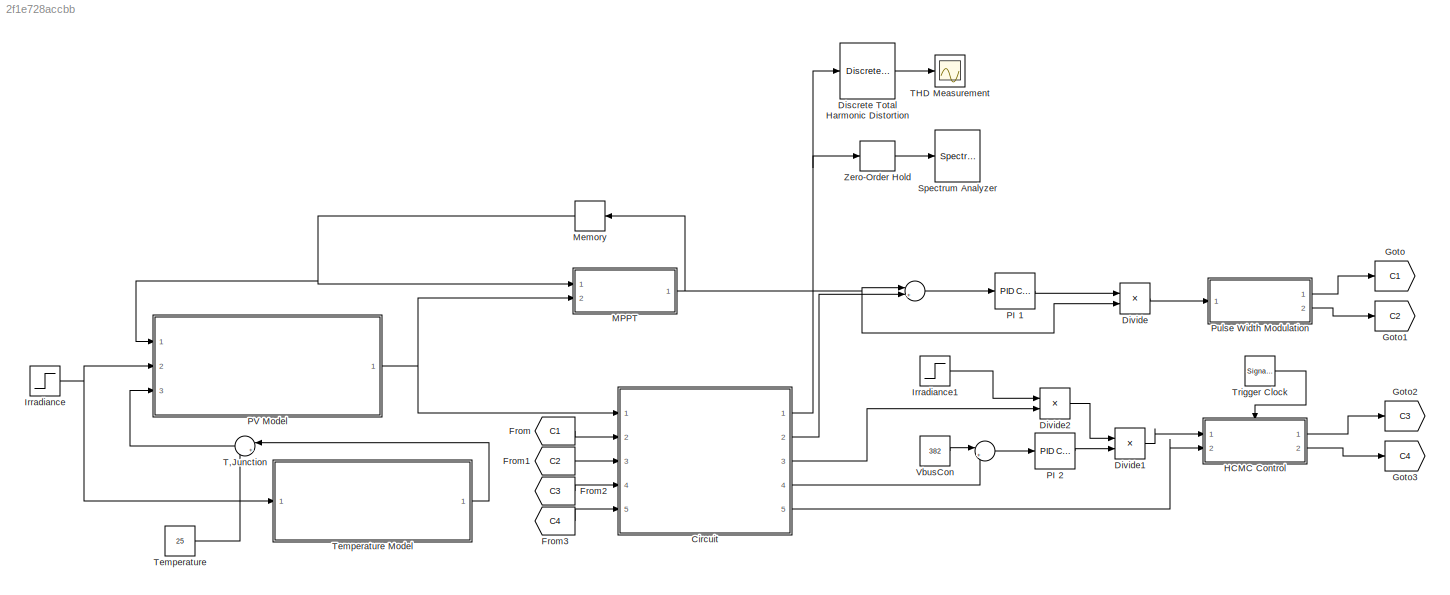
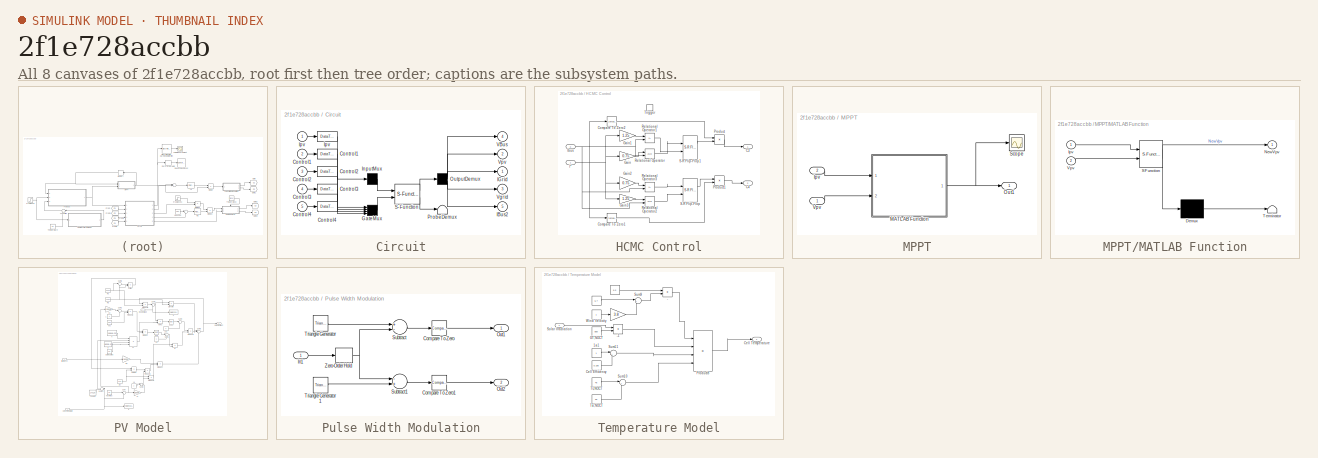
[diagram: thumbnail index - all 8 canvases of the model, root first then tree order]
MODEL slx_2f1e728accbb
KIND model
CONFIG AbsTol = auto
CONFIG EnableMultiTasking = off
CONFIG FixedStep = 0.0001
CONFIG MaxStep = auto
CONFIG MinStep = auto
CONFIG RelTol = 1e-3
CONFIG SampleTimeConstraint = Unconstrained
CONFIG Solver = VariableStepAuto
CONFIG SolverName = VariableStepAuto
CONFIG StartTime = 0.0
CONFIG StopTime = 5
BLOCK [Sum]  
  IconShape = round
  InputSameDT = off
  Inputs = |+-
  OutDataTypeStr = Inherit: Inherit via internal rule
  Ports = [2, 1]
  SaturateOnIntegerOverflow = off
BLOCK [Sum]    
  IconShape = round
  InputSameDT = off
  Inputs = |+-
  OutDataTypeStr = Inherit: Inherit via internal rule
  Ports = [2, 1]
  SaturateOnIntegerOverflow = off
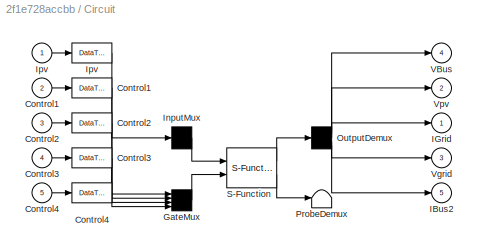
BLOCK [SubSystem] Circuit
  CopyFcn = plecs('sl', 203);
  DeleteFcn = plecs('sl', 205);
  DestroyFcn = plecs('sl', 207);
  ErrorFcn = plerrorfcn
  InitFcn = plecs('sl', 214);
  LoadFcn = plecs('sl', 200);
  NameChangeFcn = plecs('sl', 210);
  OpenFcn = plecs('sl', 202);
  Ports = [5, 5]
  PostSaveFcn = plecs('sl', 201);
  PreCopyFcn = plecs('sl', 216);
  PreSaveFcn = plecs('sl', 211);
  RequestExecContextInheritance = off
  StartFcn = plecs('sl', 208);
  StopFcn = plecs('sl', 209);
  UndoDeleteFcn = plecs('sl', 206);
BLOCK [DataTypeConversion] Circuit/ Control1 
BLOCK [DataTypeConversion] Circuit/ Control2 
BLOCK [DataTypeConversion] Circuit/ Control3 
BLOCK [DataTypeConversion] Circuit/ Control4 
BLOCK [Mux] Circuit/ GateMux 
  Inputs = [ 1 1 1 1 ]
  Ports = [4, 1]
BLOCK [Mux] Circuit/ InputMux 
  Inputs = [ 1 ]
  Ports = [1, 1]
BLOCK [DataTypeConversion] Circuit/ Ipv 
BLOCK [Demux] Circuit/ OutputDemux 
  Outputs = [ 1 1 1 1 1 ]
  Ports = [1, 5]
BLOCK [Terminator] Circuit/ ProbeDemux 
BLOCK [S-Function] Circuit/ S-Function 
  EnableBusSupport = off
  FunctionName = plecs
  Ports = [2, 2]
  SFcnIsStateOwnerBlock = off
  SFunctionDeploymentMode = off
BLOCK [Inport] Circuit/Control1
  IconDisplay = Port number
  Port = 2
  PortDimensions = 1
BLOCK [Inport] Circuit/Control2
  IconDisplay = Port number
  Port = 3
  PortDimensions = 1
BLOCK [Inport] Circuit/Control3
  IconDisplay = Port number
  Port = 4
  PortDimensions = 1
BLOCK [Inport] Circuit/Control4
  IconDisplay = Port number
  Port = 5
  PortDimensions = 1
BLOCK [Outport] Circuit/IBus2
  IconDisplay = Port number
  Port = 5
  PortDimensions = 1
BLOCK [Outport] Circuit/IGrid
  IconDisplay = Port number
  PortDimensions = 1
BLOCK [Inport] Circuit/Ipv
  IconDisplay = Port number
  PortDimensions = 1
BLOCK [Outport] Circuit/VBus
  IconDisplay = Port number
  Port = 4
  PortDimensions = 1
BLOCK [Outport] Circuit/Vgrid
  IconDisplay = Port number
  Port = 3
  PortDimensions = 1
BLOCK [Outport] Circuit/Vpv
  IconDisplay = Port number
  Port = 2
  PortDimensions = 1
BLOCK [Reference] Discrete Total Harmonic Distortion  REF=plecslib_extras2/Discrete Analysis/Discrete
Total Harmonic
Distortion
  Ports = [1, 1]
  SourceBlock = plecslib_extras2/Discrete Analysis/Discrete\nTotal Harmonic\nDistortion
  SourceProductName = PLECS Extras
  SourceType = Discrete Total Harmonic Distortion
BLOCK [Product] Divide
  InputSameDT = off
  Inputs = */
  OutDataTypeStr = Inherit: Inherit via internal rule
  Ports = [2, 1]
  RndMeth = Floor
  SaturateOnIntegerOverflow = off
BLOCK [Product] Divide1
  InputSameDT = off
  Inputs = **
  OutDataTypeStr = Inherit: Inherit via internal rule
  Ports = [2, 1]
  RndMeth = Floor
  SaturateOnIntegerOverflow = off
BLOCK [Product] Divide2
  InputSameDT = off
  Inputs = **
  OutDataTypeStr = Inherit: Inherit via internal rule
  Ports = [2, 1]
  RndMeth = Floor
  SaturateOnIntegerOverflow = off
BLOCK [From] From
  GotoTag = C1
BLOCK [From] From1
  GotoTag = C2
BLOCK [From] From2
  GotoTag = C3
BLOCK [From] From3
  GotoTag = C4
BLOCK [Goto] Goto
  GotoTag = C1
BLOCK [Goto] Goto1
  GotoTag = C2
BLOCK [Goto] Goto2
  GotoTag = C3
BLOCK [Goto] Goto3
  GotoTag = C4
BLOCK [SubSystem] HCMC Control
  Ports = [2, 2, 0, 1]
  RequestExecContextInheritance = off
BLOCK [Outport] HCMC Control/C3
  IconDisplay = Port number
BLOCK [Outport] HCMC Control/C4
  IconDisplay = Port number
  Port = 2
BLOCK [Reference] HCMC Control/Compare To Zero1  REF=simulink/Logic and Bit
Operations/Compare
To Zero
  Ports = [1, 1]
  SourceBlock = simulink/Logic and Bit\nOperations/Compare\nTo Zero
  SourceProductBaseCode = SL
  SourceProductName = Simulink
  SourceType = Compare To Zero
BLOCK [Reference] HCMC Control/Compare To Zero2  REF=simulink/Logic and Bit
Operations/Compare
To Zero
  Ports = [1, 1]
  SourceBlock = simulink/Logic and Bit\nOperations/Compare\nTo Zero
  SourceProductBaseCode = SL
  SourceProductName = Simulink
  SourceType = Compare To Zero
BLOCK [Gain] HCMC Control/Gain
  Gain = 0.75
  OutDataTypeStr = Inherit: Inherit via internal rule
  ParamDataTypeStr = Inherit: Inherit via internal rule
  SaturateOnIntegerOverflow = off
BLOCK [Gain] HCMC Control/Gain1
  Gain = 1.25
  OutDataTypeStr = Inherit: Inherit via internal rule
  ParamDataTypeStr = Inherit: Inherit via internal rule
  SaturateOnIntegerOverflow = off
BLOCK [Gain] HCMC Control/Gain2
  Gain = 0.75
  OutDataTypeStr = Inherit: Inherit via internal rule
  ParamDataTypeStr = Inherit: Inherit via internal rule
  SaturateOnIntegerOverflow = off
BLOCK [Gain] HCMC Control/Gain3
  Gain = 1.25
  OutDataTypeStr = Inherit: Inherit via internal rule
  ParamDataTypeStr = Inherit: Inherit via internal rule
  SaturateOnIntegerOverflow = off
BLOCK [Inport] HCMC Control/I*
  IconDisplay = Port number
BLOCK [Inport] HCMC Control/Ibus
  IconDisplay = Port number
  Port = 2
BLOCK [Product] HCMC Control/Product
  InputSameDT = off
  OutDataTypeStr = Inherit: Inherit via internal rule
  Ports = [2, 1]
  RndMeth = Floor
  SaturateOnIntegerOverflow = off
BLOCK [Product] HCMC Control/Product1
  InputSameDT = off
  OutDataTypeStr = Inherit: Inherit via internal rule
  Ports = [2, 1]
  RndMeth = Floor
  SaturateOnIntegerOverflow = off
BLOCK [RelationalOperator] HCMC Control/Relational Operator
  InputSameDT = off
  OutDataTypeStr = boolean
  Ports = [2, 1]
  RndMeth = Simplest
  ZeroCross = off
BLOCK [RelationalOperator] HCMC Control/Relational Operator1
  InputSameDT = off
  Operator = <=
  OutDataTypeStr = boolean
  Ports = [2, 1]
  RndMeth = Simplest
  ZeroCross = off
BLOCK [RelationalOperator] HCMC Control/Relational Operator2
  InputSameDT = off
  OutDataTypeStr = boolean
  Ports = [2, 1]
  RndMeth = Simplest
  ZeroCross = off
BLOCK [RelationalOperator] HCMC Control/Relational Operator3
  InputSameDT = off
  Operator = <=
  OutDataTypeStr = boolean
  Ports = [2, 1]
  RndMeth = Simplest
  ZeroCross = off
BLOCK [Reference] HCMC Control/S-R Flip-Flop  REF=simulink_extras/Flip Flops/S-R
Flip-Flop
  Ports = [2, 2]
  SourceBlock = simulink_extras/Flip Flops/S-R\nFlip-Flop
  SourceProductBaseCode = SL
  SourceProductName = Simulink
  SourceType = SRFlipFlop
BLOCK [Reference] HCMC Control/S-R Flip-Flop1  REF=simulink_extras/Flip Flops/S-R
Flip-Flop
  Ports = [2, 2]
  SourceBlock = simulink_extras/Flip Flops/S-R\nFlip-Flop
  SourceProductBaseCode = SL
  SourceProductName = Simulink
  SourceType = SRFlipFlop
BLOCK [TriggerPort] HCMC Control/Trigger
  PortDimensions = 1
  Ports = []
  StatesWhenEnabling = held
  VariantControl = Variant
BLOCK [Step] Irradiance
  After = 1000
  Before = 1000
  SampleTime = 0
BLOCK [Step] Irradiance1
  After = 1/245
  Before = 1/220
  SampleTime = 0
BLOCK [SubSystem] MPPT
  Ports = [2, 1]
  RequestExecContextInheritance = off
BLOCK [Inport] MPPT/Ipv
  IconDisplay = Port number
  Port = 2
BLOCK [SubSystem] MPPT/MATLAB Function
  ErrorFcn = Stateflow.Translate.translate
  PermitHierarchicalResolution = ExplicitOnly
  Ports = [2, 1]
  RequestExecContextInheritance = off
  SFBlockType = MATLAB Function
  TreatAsAtomicUnit = on
BLOCK [Demux] MPPT/MATLAB Function/ Demux 
  Outputs = 1
  Ports = [1, 1]
BLOCK [S-Function] MPPT/MATLAB Function/ SFunction 
  EnableBusSupport = on
  FunctionName = sf_sfun
  PortCounts = [2 2]
  Ports = [2, 2]
  SFcnIsStateOwnerBlock = off
  SFunctionDeploymentMode = off
  Tag = Stateflow S-Function 1
BLOCK [Terminator] MPPT/MATLAB Function/ Terminator 
BLOCK [Inport] MPPT/MATLAB Function/Ipv
  IconDisplay = Port number
BLOCK [Outport] MPPT/MATLAB Function/NewVpv
  IconDisplay = Port number
  VectorParamsAs1DForOutWhenUnconnected = off
BLOCK [Inport] MPPT/MATLAB Function/Vpv
  IconDisplay = Port number
  Port = 2
BLOCK [Outport] MPPT/Out1
  IconDisplay = Port number
  VectorParamsAs1DForOutWhenUnconnected = off
BLOCK [Scope] MPPT/Scope
  Floating = off
  NumInputPorts = 1
  Ports = [1]
  ScopeSpecificationString = Simulink.scopes.TimeScopeBlockCfg('CurrentConfiguration', extmgr.ConfigurationSet(extmgr.Configuration('Core','General UI',true),extmgr.Configuration('Core','Source UI',true),extmgr.Configuration('Sources','WiredSimulink',true,'DataLoggingVariableName','ScopeData2'),extmgr.Configuration('Visuals','Time Domain',true,'SerializedDisplays',{struct('MinYLimReal','27.14067','MaxYLimReal','27.65265','YLa...<+1411ch>
BLOCK [Inport] MPPT/Vpv
  IconDisplay = Port number
BLOCK [Memory] Memory
  InitialCondition = 28
BLOCK [Reference] PI 1  REF=simulink/Continuous/PID Controller
  Ports = [1, 1]
  SourceBlock = simulink/Continuous/PID Controller
  SourceProductBaseCode = SL
  SourceProductName = Simulink
  SourceType = PID 1dof
BLOCK [Reference] PI 2  REF=simulink/Continuous/PID Controller
  Ports = [1, 1]
  SourceBlock = simulink/Continuous/PID Controller
  SourceProductBaseCode = SL
  SourceProductName = Simulink
  SourceType = PID 1dof
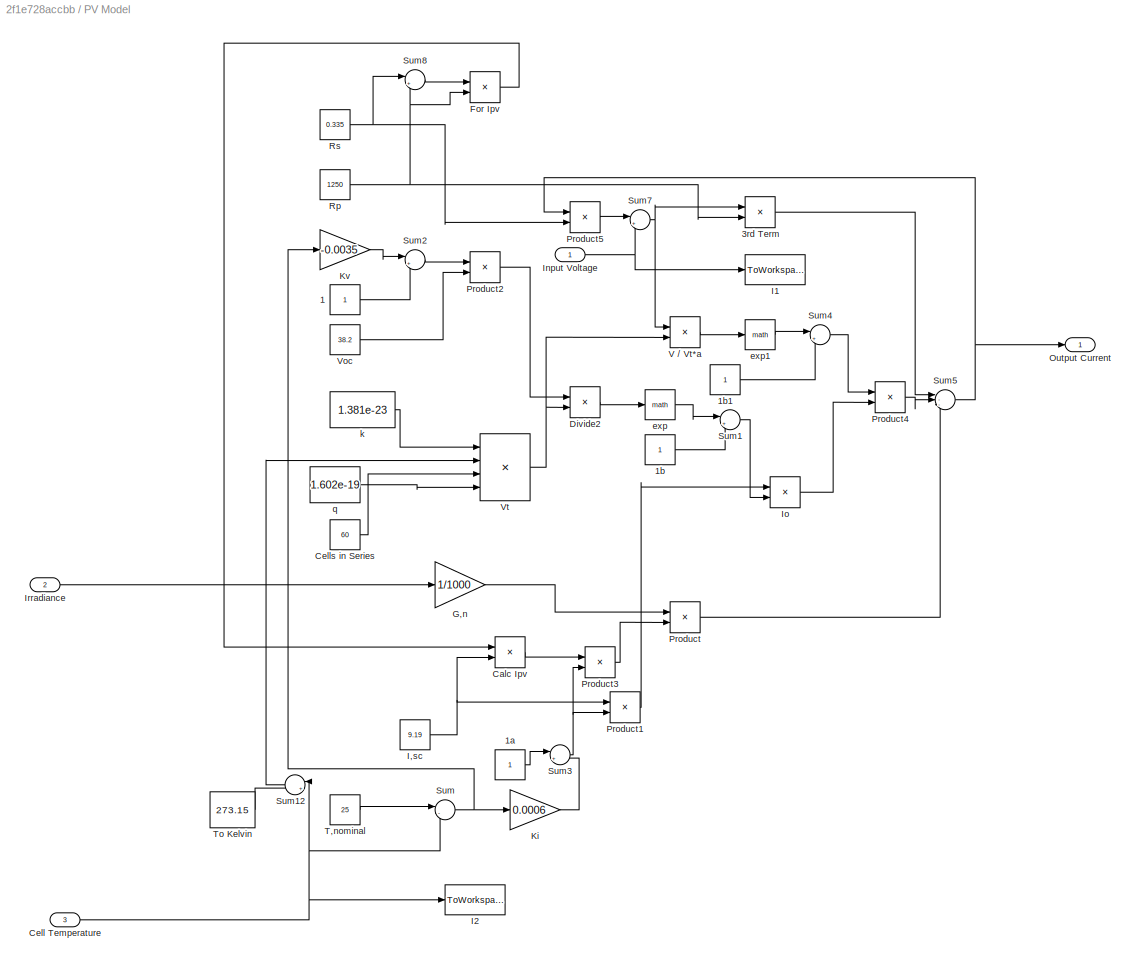
BLOCK [SubSystem] PV Model
  Ports = [3, 1]
  RequestExecContextInheritance = off
BLOCK [Constant] PV Model/1
BLOCK [Constant] PV Model/1a
BLOCK [Constant] PV Model/1b
BLOCK [Constant] PV Model/1b1
BLOCK [Product] PV Model/3rd Term
  InputSameDT = off
  Inputs = */
  OutDataTypeStr = Inherit: Inherit via internal rule
  Ports = [2, 1]
  RndMeth = Floor
  SaturateOnIntegerOverflow = off
BLOCK [Product] PV Model/Calc Ipv
  InputSameDT = off
  OutDataTypeStr = Inherit: Inherit via internal rule
  Ports = [2, 1]
  RndMeth = Floor
  SaturateOnIntegerOverflow = off
BLOCK [Inport] PV Model/Cell Temperature
  IconDisplay = Port number
  Port = 3
BLOCK [Constant] PV Model/Cells in Series
  Value = 60
BLOCK [Product] PV Model/Divide2
  InputSameDT = off
  Inputs = */
  OutDataTypeStr = Inherit: Inherit via internal rule
  Ports = [2, 1]
  RndMeth = Floor
  SaturateOnIntegerOverflow = off
BLOCK [Product] PV Model/For Ipv
  InputSameDT = off
  Inputs = */
  OutDataTypeStr = Inherit: Inherit via internal rule
  Ports = [2, 1]
  RndMeth = Floor
  SaturateOnIntegerOverflow = off
BLOCK [Gain] PV Model/G,n
  Gain = 1/1000
  OutDataTypeStr = Inherit: Inherit via internal rule
  ParamDataTypeStr = Inherit: Inherit via internal rule
  SaturateOnIntegerOverflow = off
BLOCK [Constant] PV Model/I,sc
  Value = 9.19
BLOCK [ToWorkspace] PV Model/I1
  FixptAsFi = on
  MaxDataPoints = inf
  Ports = [1]
  SampleTime = -1
  VariableName = Voltage
BLOCK [ToWorkspace] PV Model/I2
  FixptAsFi = on
  MaxDataPoints = inf
  Ports = [1]
  SampleTime = -1
  VariableName = Temperature
BLOCK [Inport] PV Model/Input Voltage
  IconDisplay = Port number
BLOCK [Product] PV Model/Io
  InputSameDT = off
  Inputs = */
  OutDataTypeStr = Inherit: Inherit via internal rule
  Ports = [2, 1]
  RndMeth = Floor
  SaturateOnIntegerOverflow = off
BLOCK [Inport] PV Model/Irradiance
  IconDisplay = Port number
  Port = 2
BLOCK [Gain] PV Model/Ki
  Gain = 0.0006
  OutDataTypeStr = Inherit: Inherit via internal rule
  ParamDataTypeStr = Inherit: Inherit via internal rule
  SaturateOnIntegerOverflow = off
BLOCK [Gain] PV Model/Kv
  Gain = -0.0035
  OutDataTypeStr = Inherit: Inherit via internal rule
  ParamDataTypeStr = Inherit: Inherit via internal rule
  SaturateOnIntegerOverflow = off
BLOCK [Outport] PV Model/Output Current
  IconDisplay = Port number
  VectorParamsAs1DForOutWhenUnconnected = off
BLOCK [Product] PV Model/Product
  InputSameDT = off
  OutDataTypeStr = Inherit: Inherit via internal rule
  Ports = [2, 1]
  RndMeth = Floor
  SaturateOnIntegerOverflow = off
BLOCK [Product] PV Model/Product1
  InputSameDT = off
  OutDataTypeStr = Inherit: Inherit via internal rule
  Ports = [2, 1]
  RndMeth = Floor
  SaturateOnIntegerOverflow = off
BLOCK [Product] PV Model/Product2
  InputSameDT = off
  OutDataTypeStr = Inherit: Inherit via internal rule
  Ports = [2, 1]
  RndMeth = Floor
  SaturateOnIntegerOverflow = off
BLOCK [Product] PV Model/Product3
  InputSameDT = off
  OutDataTypeStr = Inherit: Inherit via internal rule
  Ports = [2, 1]
  RndMeth = Floor
  SaturateOnIntegerOverflow = off
BLOCK [Product] PV Model/Product4
  InputSameDT = off
  OutDataTypeStr = Inherit: Inherit via internal rule
  Ports = [2, 1]
  RndMeth = Floor
  SaturateOnIntegerOverflow = off
BLOCK [Product] PV Model/Product5
  InputSameDT = off
  OutDataTypeStr = Inherit: Inherit via internal rule
  Ports = [2, 1]
  RndMeth = Floor
  SaturateOnIntegerOverflow = off
BLOCK [Constant] PV Model/Rp
  Value = 1250
BLOCK [Constant] PV Model/Rs
  Value = 0.335
BLOCK [Sum] PV Model/Sum
  IconShape = round
  InputSameDT = off
  Inputs = |-+
  OutDataTypeStr = Inherit: Inherit via internal rule
  Ports = [2, 1]
  SaturateOnIntegerOverflow = off
BLOCK [Sum] PV Model/Sum1
  IconShape = round
  InputSameDT = off
  Inputs = |+-
  OutDataTypeStr = Inherit: Inherit via internal rule
  Ports = [2, 1]
  SaturateOnIntegerOverflow = off
BLOCK [Sum] PV Model/Sum12
  IconShape = round
  InputSameDT = off
  Inputs = |++
  OutDataTypeStr = Inherit: Inherit via internal rule
  Ports = [2, 1]
  SaturateOnIntegerOverflow = off
BLOCK [Sum] PV Model/Sum2
  IconShape = round
  InputSameDT = off
  Inputs = |++
  OutDataTypeStr = Inherit: Inherit via internal rule
  Ports = [2, 1]
  SaturateOnIntegerOverflow = off
BLOCK [Sum] PV Model/Sum3
  IconShape = round
  InputSameDT = off
  Inputs = |++
  OutDataTypeStr = Inherit: Inherit via internal rule
  Ports = [2, 1]
  SaturateOnIntegerOverflow = off
BLOCK [Sum] PV Model/Sum4
  IconShape = round
  InputSameDT = off
  Inputs = |+-
  OutDataTypeStr = Inherit: Inherit via internal rule
  Ports = [2, 1]
  SaturateOnIntegerOverflow = off
BLOCK [Sum] PV Model/Sum5
  IconShape = round
  InputSameDT = off
  Inputs = |--+
  OutDataTypeStr = Inherit: Inherit via internal rule
  Ports = [3, 1]
  SaturateOnIntegerOverflow = off
BLOCK [Sum] PV Model/Sum7
  IconShape = round
  InputSameDT = off
  Inputs = |++
  OutDataTypeStr = Inherit: Inherit via internal rule
  Ports = [2, 1]
  SaturateOnIntegerOverflow = off
BLOCK [Sum] PV Model/Sum8
  IconShape = round
  InputSameDT = off
  Inputs = |++
  OutDataTypeStr = Inherit: Inherit via internal rule
  Ports = [2, 1]
  SaturateOnIntegerOverflow = off
BLOCK [Constant] PV Model/T,nominal
  Value = 25
BLOCK [Constant] PV Model/To Kelvin
  Value = 273.15
BLOCK [Product] PV Model/V // Vt*a
  InputSameDT = off
  Inputs = */
  OutDataTypeStr = Inherit: Inherit via internal rule
  Ports = [2, 1]
  RndMeth = Floor
  SaturateOnIntegerOverflow = off
BLOCK [Constant] PV Model/Voc
  Value = 38.2
BLOCK [Product] PV Model/Vt
  InputSameDT = off
  Inputs = ***/
  OutDataTypeStr = Inherit: Inherit via internal rule
  Ports = [4, 1]
  RndMeth = Floor
  SaturateOnIntegerOverflow = off
BLOCK [Math] PV Model/exp
  Ports = [1, 1]
BLOCK [Math] PV Model/exp1
  Ports = [1, 1]
BLOCK [Constant] PV Model/k
  Value = 1.381e-23
BLOCK [Constant] PV Model/q
  Value = 1.602e-19
BLOCK [SubSystem] Pulse Width Modulation
  Ports = [1, 2]
  RequestExecContextInheritance = off
BLOCK [Reference] Pulse Width Modulation/Compare To Zero  REF=simulink/Logic and Bit
Operations/Compare
To Zero
  Ports = [1, 1]
  SourceBlock = simulink/Logic and Bit\nOperations/Compare\nTo Zero
  SourceProductBaseCode = SL
  SourceProductName = Simulink
  SourceType = Compare To Zero
BLOCK [Reference] Pulse Width Modulation/Compare To Zero1  REF=simulink/Logic and Bit
Operations/Compare
To Zero
  Ports = [1, 1]
  SourceBlock = simulink/Logic and Bit\nOperations/Compare\nTo Zero
  SourceProductBaseCode = SL
  SourceProductName = Simulink
  SourceType = Compare To Zero
BLOCK [Inport] Pulse Width Modulation/In1
  IconDisplay = Port number
BLOCK [Outport] Pulse Width Modulation/Out1
  IconDisplay = Port number
BLOCK [Outport] Pulse Width Modulation/Out2
  IconDisplay = Port number
  Port = 2
BLOCK [Sum] Pulse Width Modulation/Subtract
  InputSameDT = off
  Inputs = +-
  OutDataTypeStr = Inherit: Inherit via internal rule
  Ports = [2, 1]
  SaturateOnIntegerOverflow = off
BLOCK [Sum] Pulse Width Modulation/Subtract1
  InputSameDT = off
  Inputs = -+
  OutDataTypeStr = Inherit: Inherit via internal rule
  Ports = [2, 1]
  SaturateOnIntegerOverflow = off
BLOCK [Reference] Pulse Width Modulation/Triangle Generator  REF=plecslib_extras2/Modulators/Triangle
Generator
  Ports = [0, 1]
  SourceBlock = plecslib_extras2/Modulators/Triangle\nGenerator
  SourceProductName = PLECS Extras
  SourceType = Symmetric Triangle Generator
BLOCK [Reference] Pulse Width Modulation/Triangle Generator1  REF=plecslib_extras2/Modulators/Triangle
Generator
  Ports = [0, 1]
  SourceBlock = plecslib_extras2/Modulators/Triangle\nGenerator
  SourceProductName = PLECS Extras
  SourceType = Symmetric Triangle Generator
BLOCK [ZeroOrderHold] Pulse Width Modulation/Zero-Order Hold
  SampleTime = -1
BLOCK [SpectrumAnalyzer] Spectrum Analyzer 
  Ports = [1]
  ScopeSpecificationString = spbscopes.SpectrumAnalyzerBlockCfg('CurrentConfiguration', extmgr.ConfigurationSet(extmgr.Configuration('Core','General UI',true),extmgr.Configuration('Core','Source UI',true),extmgr.Configuration('Sources','WiredSimulink',true),extmgr.Configuration('Visuals','Spectrum',true,'AxesProperties',struct('Color',{[0 0 0],[0 0 0]},'XColor',{[0.686274509803922 0.686274509803922 0.686274509803922],[0.68627...<+2105ch>
BLOCK [Sum] T,Junction
  IconShape = round
  InputSameDT = off
  Inputs = |++
  OutDataTypeStr = Inherit: Inherit via internal rule
  Ports = [2, 1]
  SaturateOnIntegerOverflow = off
BLOCK [Scope] THD Measurement
  Floating = off
  NumInputPorts = 1
  Ports = [1]
  ScopeSpecificationString = Simulink.scopes.TimeScopeBlockCfg('CurrentConfiguration', extmgr.ConfigurationSet(extmgr.Configuration('Core','General UI',true),extmgr.Configuration('Core','Source UI',true),extmgr.Configuration('Sources','WiredSimulink',true,'DataLoggingVariableName','ScopeData1'),extmgr.Configuration('Visuals','Time Domain',true,'SerializedDisplays',{struct('MinYLimReal','-0.00061','MaxYLimReal','0.03304','YLab...<+1582ch>
BLOCK [Constant] Temperature
  Value = 25
BLOCK [SubSystem] Temperature Model
  Ports = [1, 1]
  RequestExecContextInheritance = off
BLOCK [Constant] Temperature Model/ 
  Value = 5.7
BLOCK [Gain] Temperature Model/  
  Gain = 3.8
  OutDataTypeStr = Inherit: Inherit via internal rule
  ParamDataTypeStr = Inherit: Inherit via internal rule
  SaturateOnIntegerOverflow = off
BLOCK [Constant] Temperature Model/    
  Value = 9.5
BLOCK [Product] Temperature Model/-
  InputSameDT = off
  Inputs = */
  OutDataTypeStr = Inherit: Inherit via internal rule
  Ports = [2, 1]
  RndMeth = Floor
  SaturateOnIntegerOverflow = off
BLOCK [Product] Temperature Model/-1
  InputSameDT = off
  Inputs = */
  OutDataTypeStr = Inherit: Inherit via internal rule
  Ports = [2, 1]
  RndMeth = Floor
  SaturateOnIntegerOverflow = off
BLOCK [Constant] Temperature Model/1a1
BLOCK [Constant] Temperature Model/Cell Efficiency
  Value = 0.165
BLOCK [Outport] Temperature Model/Cell Temperature
  IconDisplay = Port number
  VectorParamsAs1DForOutWhenUnconnected = off
BLOCK [Constant] Temperature Model/GT,NOCT
  Value = 800
BLOCK [Product] Temperature Model/Product8
  InputSameDT = off
  Inputs = 4
  OutDataTypeStr = Inherit: Inherit via internal rule
  Ports = [4, 1]
  RndMeth = Floor
  SaturateOnIntegerOverflow = off
BLOCK [Inport] Temperature Model/Solar Irradiation
  IconDisplay = Port number
BLOCK [Sum] Temperature Model/Sum10
  IconShape = round
  InputSameDT = off
  Inputs = |+-
  OutDataTypeStr = Inherit: Inherit via internal rule
  Ports = [2, 1]
  SaturateOnIntegerOverflow = off
BLOCK [Sum] Temperature Model/Sum11
  IconShape = round
  InputSameDT = off
  Inputs = |+-
  OutDataTypeStr = Inherit: Inherit via internal rule
  Ports = [2, 1]
  SaturateOnIntegerOverflow = off
BLOCK [Sum] Temperature Model/Sum9
  IconShape = round
  InputSameDT = off
  Inputs = |++
  OutDataTypeStr = Inherit: Inherit via internal rule
  Ports = [2, 1]
  SaturateOnIntegerOverflow = off
BLOCK [Constant] Temperature Model/Ta,NOCT
  Value = 20
BLOCK [Constant] Temperature Model/Tc,NOCT
  Value = 45
BLOCK [Constant] Temperature Model/Wind Velocity
BLOCK [SignalGenerator] Trigger Clock
  Frequency = 400e3
  Ports = [0, 1]
  Units = rad/sec
  WaveForm = square
BLOCK [Constant] VbusCon
  Value = 382
BLOCK [ZeroOrderHold] Zero-Order Hold
  SampleTime = 1/1500
LINE    :1 -> PI 2:1
LINE  :1 -> PI 1:1
NET Circuit:1 -> Discrete Total Harmonic Distortion:1, Zero-Order Hold:1
LINE Circuit:2 ->  :2
LINE Circuit:3 -> Divide2:2
LINE Circuit:4 ->    :2
LINE Circuit:5 -> HCMC Control:2
LINE Discrete Total Harmonic Distortion:1 -> THD Measurement:1
LINE Divide1:1 -> HCMC Control:1
LINE Divide2:1 -> Divide1:1
LINE Divide:1 -> Pulse Width Modulation:1
LINE From1:1 -> Circuit:3
LINE From2:1 -> Circuit:4
LINE From3:1 -> Circuit:5
LINE From:1 -> Circuit:2
LINE HCMC Control/Compare To Zero1:1 -> HCMC Control/Product1:2
LINE HCMC Control/Compare To Zero2:1 -> HCMC Control/Product:1
LINE HCMC Control/Gain1:1 -> HCMC Control/Relational Operator1:1
LINE HCMC Control/Gain2:1 -> HCMC Control/Relational Operator3:1
LINE HCMC Control/Gain3:1 -> HCMC Control/Relational Operator2:1
LINE HCMC Control/Gain:1 -> HCMC Control/Relational Operator:1
NET HCMC Control/I*:1 -> HCMC Control/Compare To Zero1:1, HCMC Control/Compare To Zero2:1, HCMC Control/Gain1:1, HCMC Control/Gain2:1, HCMC Control/Gain3:1, HCMC Control/Gain:1
NET HCMC Control/Ibus:1 -> HCMC Control/Relational Operator1:2, HCMC Control/Relational Operator2:2, HCMC Control/Relational Operator3:2, HCMC Control/Relational Operator:2
LINE HCMC Control/Product1:1 -> HCMC Control/C4:1
LINE HCMC Control/Product:1 -> HCMC Control/C3:1
LINE HCMC Control/Relational Operator1:1 -> HCMC Control/S-R Flip-Flop1:2
LINE HCMC Control/Relational Operator2:1 -> HCMC Control/S-R Flip-Flop:2
LINE HCMC Control/Relational Operator3:1 -> HCMC Control/S-R Flip-Flop:1
LINE HCMC Control/Relational Operator:1 -> HCMC Control/S-R Flip-Flop1:1
LINE HCMC Control/S-R Flip-Flop1:1 -> HCMC Control/Product:2
LINE HCMC Control/S-R Flip-Flop:1 -> HCMC Control/Product1:1
LINE HCMC Control:1 -> Goto2:1
LINE HCMC Control:2 -> Goto3:1
LINE Irradiance1:1 -> Divide2:1
NET Irradiance:1 -> PV Model:2, Temperature Model:1
LINE MPPT/Ipv:1 -> MPPT/MATLAB Function:1
NET MPPT/MATLAB Function:1 -> MPPT/Out1:1, MPPT/Scope:1
LINE MPPT/Vpv:1 -> MPPT/MATLAB Function:2
NET MPPT:1 ->  :1, Divide:2, Memory:1
NET Memory:1 -> MPPT:1, PV Model:1
LINE PI 1:1 -> Divide:1
LINE PI 2:1 -> Divide1:2
LINE PV Model/1:1 -> PV Model/Sum2:2
LINE PV Model/1a:1 -> PV Model/Sum3:1
LINE PV Model/1b1:1 -> PV Model/Sum4:2
LINE PV Model/1b:1 -> PV Model/Sum1:2
LINE PV Model/3rd Term:1 -> PV Model/Sum5:1
LINE PV Model/Calc Ipv:1 -> PV Model/Product3:1
NET PV Model/Cell Temperature:1 -> PV Model/I2:1, PV Model/Sum12:1, PV Model/Sum:2
LINE PV Model/Cells in Series:1 -> PV Model/Vt:3
LINE PV Model/Divide2:1 -> PV Model/exp:1
LINE PV Model/For Ipv:1 -> PV Model/Calc Ipv:1
LINE PV Model/G,n:1 -> PV Model/Product:1
NET PV Model/I,sc:1 -> PV Model/Calc Ipv:2, PV Model/Product1:1
NET PV Model/Input Voltage:1 -> PV Model/I1:1, PV Model/Sum7:2
LINE PV Model/Io:1 -> PV Model/Product4:2
LINE PV Model/Irradiance:1 -> PV Model/G,n:1
LINE PV Model/Ki:1 -> PV Model/Sum3:2
LINE PV Model/Kv:1 -> PV Model/Sum2:1
LINE PV Model/Product1:1 -> PV Model/Io:1
LINE PV Model/Product2:1 -> PV Model/Divide2:1
LINE PV Model/Product3:1 -> PV Model/Product:2
LINE PV Model/Product4:1 -> PV Model/Sum5:2
LINE PV Model/Product5:1 -> PV Model/Sum7:1
LINE PV Model/Product:1 -> PV Model/Sum5:3
NET PV Model/Rp:1 -> PV Model/3rd Term:2, PV Model/For Ipv:2, PV Model/Sum8:2
NET PV Model/Rs:1 -> PV Model/Product5:2, PV Model/Sum8:1
LINE PV Model/Sum12:1 -> PV Model/Vt:2
LINE PV Model/Sum1:1 -> PV Model/Io:2
LINE PV Model/Sum2:1 -> PV Model/Product2:1
NET PV Model/Sum3:1 -> PV Model/Product1:2, PV Model/Product3:2
LINE PV Model/Sum4:1 -> PV Model/Product4:1
NET PV Model/Sum5:1 -> PV Model/Output Current:1, PV Model/Product5:1
NET PV Model/Sum7:1 -> PV Model/3rd Term:1, PV Model/V // Vt*a:1
LINE PV Model/Sum8:1 -> PV Model/For Ipv:1
NET PV Model/Sum:1 -> PV Model/Ki:1, PV Model/Kv:1
LINE PV Model/T,nominal:1 -> PV Model/Sum:1
LINE PV Model/To Kelvin:1 -> PV Model/Sum12:2
LINE PV Model/V // Vt*a:1 -> PV Model/exp1:1
LINE PV Model/Voc:1 -> PV Model/Product2:2
NET PV Model/Vt:1 -> PV Model/Divide2:2, PV Model/V // Vt*a:2
LINE PV Model/exp1:1 -> PV Model/Sum4:1
LINE PV Model/exp:1 -> PV Model/Sum1:1
LINE PV Model/k:1 -> PV Model/Vt:1
LINE PV Model/q:1 -> PV Model/Vt:4
NET PV Model:1 -> Circuit:1, MPPT:2
LINE Pulse Width Modulation/Compare To Zero1:1 -> Pulse Width Modulation/Out2:1
LINE Pulse Width Modulation/Compare To Zero:1 -> Pulse Width Modulation/Out1:1
LINE Pulse Width Modulation/In1:1 -> Pulse Width Modulation/Zero-Order Hold:1
LINE Pulse Width Modulation/Subtract1:1 -> Pulse Width Modulation/Compare To Zero1:1
LINE Pulse Width Modulation/Subtract:1 -> Pulse Width Modulation/Compare To Zero:1
LINE Pulse Width Modulation/Triangle Generator1:1 -> Pulse Width Modulation/Subtract1:2
LINE Pulse Width Modulation/Triangle Generator:1 -> Pulse Width Modulation/Subtract:1
NET Pulse Width Modulation/Zero-Order Hold:1 -> Pulse Width Modulation/Subtract1:1, Pulse Width Modulation/Subtract:2
LINE Pulse Width Modulation:1 -> Goto:1
LINE Pulse Width Modulation:2 -> Goto1:1
LINE T,Junction:1 -> PV Model:3
LINE Temperature Model/    :1 -> Temperature Model/-:1
LINE Temperature Model/  :1 -> Temperature Model/Sum9:2
LINE Temperature Model/ :1 -> Temperature Model/Sum9:1
LINE Temperature Model/-1:1 -> Temperature Model/Product8:2
LINE Temperature Model/-:1 -> Temperature Model/Product8:1
LINE Temperature Model/1a1:1 -> Temperature Model/Sum11:1
LINE Temperature Model/Cell Efficiency:1 -> Temperature Model/Sum11:2
LINE Temperature Model/GT,NOCT:1 -> Temperature Model/-1:2
LINE Temperature Model/Product8:1 -> Temperature Model/Cell Temperature:1
LINE Temperature Model/Solar Irradiation:1 -> Temperature Model/-1:1
LINE Temperature Model/Sum10:1 -> Temperature Model/Product8:4
LINE Temperature Model/Sum11:1 -> Temperature Model/Product8:3
LINE Temperature Model/Sum9:1 -> Temperature Model/-:2
LINE Temperature Model/Ta,NOCT:1 -> Temperature Model/Sum10:2
LINE Temperature Model/Tc,NOCT:1 -> Temperature Model/Sum10:1
LINE Temperature Model/Wind Velocity:1 -> Temperature Model/  :1
LINE Temperature Model:1 -> T,Junction:1
LINE Temperature:1 -> T,Junction:2
LINE Trigger Clock:1 -> HCMC Control:trigger
LINE VbusCon:1 ->    :1
LINE Zero-Order Hold:1 -> Spectrum Analyzer :1
note: NET lines group one-source signal fan-out (src -> all destinations, sorted); 1:1 wires keep LINE
CHART MPPT/MATLAB Function states=1 transitions=1
  STATE_LABEL 'eML_blk_kernel()'
  STATE_LABEL 'SCRIPT:\nfunction NewVpv = PerturbObserve(Ipv,Vpv)\n\npersistent Pprev Vprev Dprev M,\n\nM = 0.000555;\n\nif isempty(Dprev)\n    Dprev = 0.1;\n    Vprev = 32.1;\n    Pprev = 130;\nend\n\nPpv = Ipv * Vpv;\nSlope = (Ppv - Pprev)/(Vpv-Vprev);\nif abs(Slope) > 50\n    if Slope > 0\n        Slope = 5;\n    else \n        Slope = -5;\n    end \nend \n\nif abs(Ppv - Pprev) >= 1e-8\n    if (Ppv-Pprev) > 0\n        if (Vpv-Vprev) ...<+557ch>'
